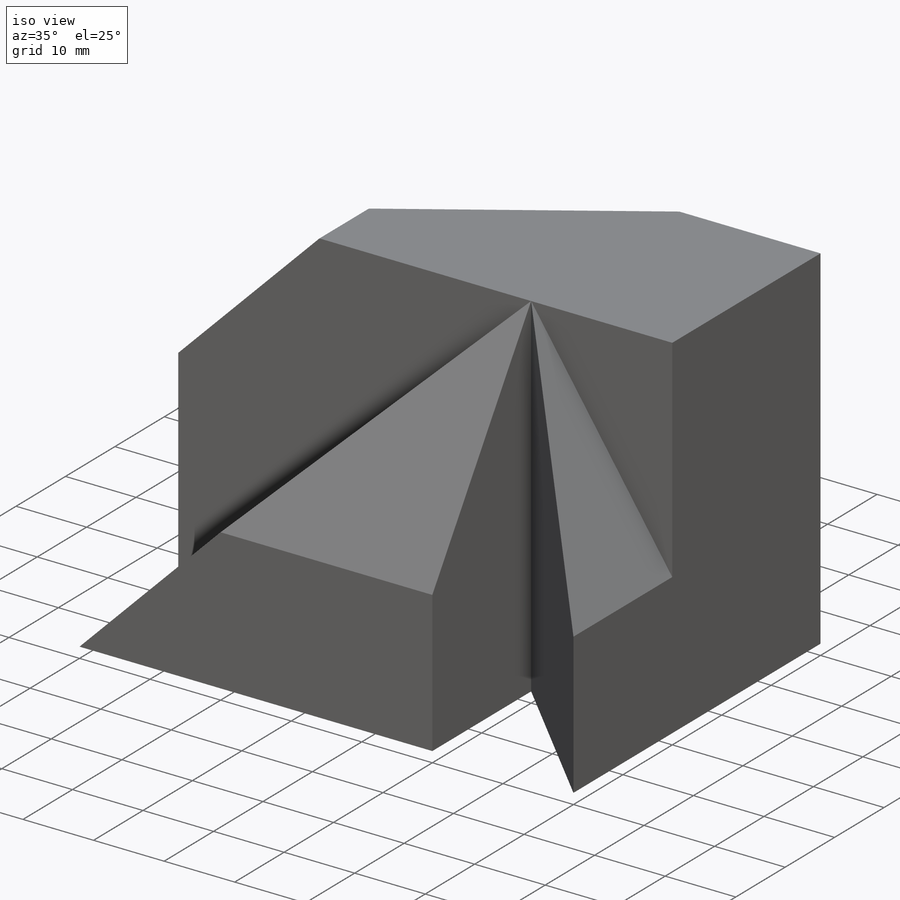
[diagram: iso view]
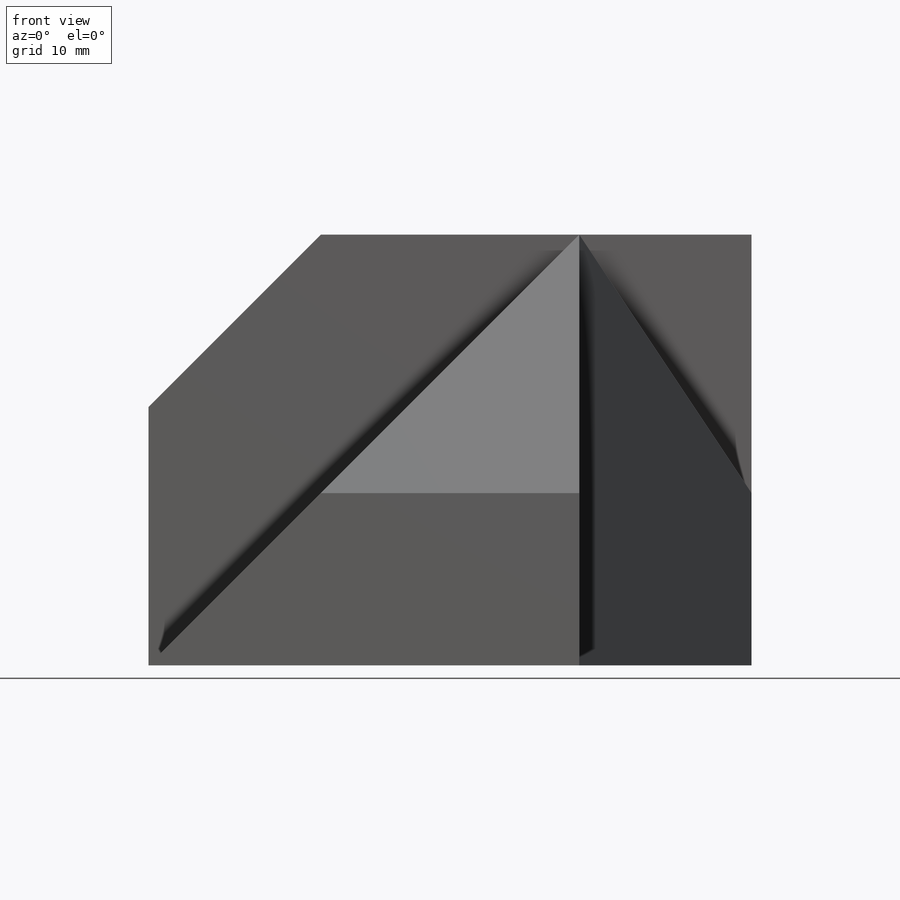
[diagram: front view]
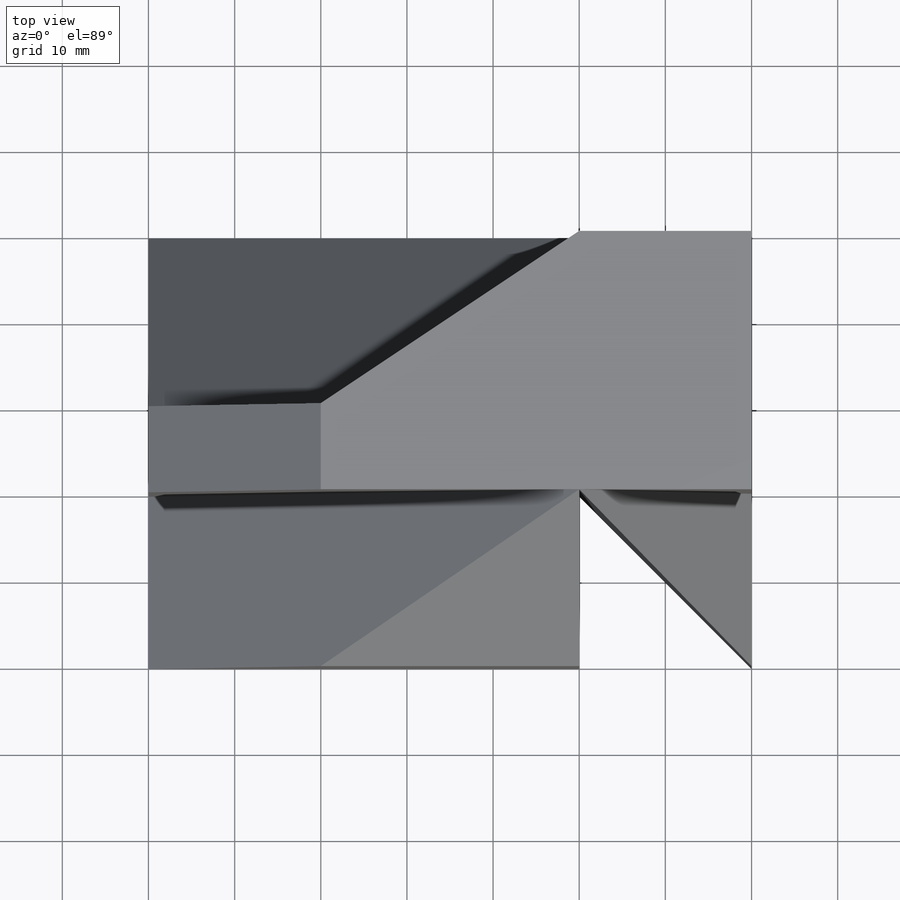
[diagram: top view]
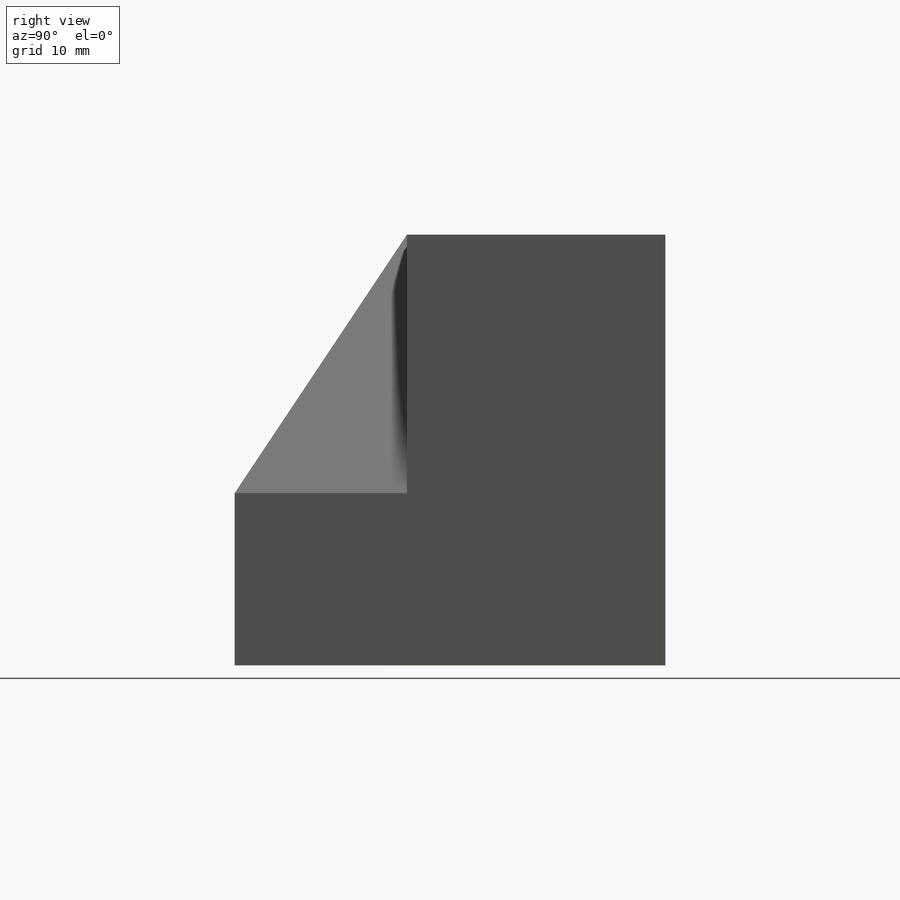
[diagram: right view]
SOLIDWORKS PART (.sldprt)
format: sldprt  version: not decoded by parser v0  size: 847,360 bytes
history: native  units: mm
features: sketch x49, cut_extrude x27, extrude x20, plane x11, material x1 (+13 scaffold rows collapsed)
feature tree (121):
  scaffold x13  (default folders/planes/origin — collapsed)
  material  "Material <not specified>"
  sketch  "Sketch1"  dims[D1=70.0mm D2=50.0mm D3=50.0mm D4=30.0mm]
  extrude  "Boss-Extrude1"  Depth=50mm
  sketch  "Sketch2"  dims[D1=50.0mm D2=30.0mm]
  cut_extrude  "Cut-Extrude2"  Depth=10mm
  sketch  "Sketch3"  dims[D1=20.0mm D2=20.0mm D3=50.0mm]
  cut_extrude  "Cut-Extrude3"  Depth=20mm
  sketch  "Sketch4"  dims[D1=50.0mm D2=20.0mm]
  cut_extrude  "Cut-Extrude4"  Depth=10mm
  sketch  "Sketch5"  dims[D1=30.0mm]
  cut_extrude  "Cut-Extrude5"  Depth=10mm
  sketch  "Sketch6"  dims[D1=50.0mm D2=20.0mm D3=20.0mm]
  cut_extrude  "Cut-Extrude6"  Depth=20mm
  sketch  "Sketch7"  dims[c1.D1=~21.742279mm c1.D2=~12.913947mm c2.D1=10.0mm c2.D2=20.0mm]
  cut_extrude  "Cut-Extrude7"  Depth=30mm
  sketch  "Sketch8"  dims[D1=20.0mm D2=20.0mm D3=50.0mm D4=0.0mm]
  extrude  "Boss-Extrude2"  Depth=30mm
  sketch  "Sketch10"  dims[D1=20.0mm]
  cut_extrude  "Cut-Extrude10"  Depth=72mm
  sketch  "Sketch11"  dims[D1=~36.055513mm]
  cut_extrude  "Cut-Extrude13"  Depth=10mm
  sketch  "Sketch12"  dims[D1=~6.009252mm]
  extrude  "Boss-Extrude3"  Depth=10mm
  plane  "Plane1"  Offset=50mm
  sketch  "Sketch14"  dims[D1=0.0mm D2=20.0mm D3=20.0mm D4=50.0mm]
  extrude  "Boss-Extrude4"  Depth=29mm
  sketch  "Sketch15"  dims[D1=50.0mm D2=30.0mm]
  extrude  "Boss-Extrude5"  Depth=29mm
  sketch  "Sketch16"  dims[D1=10.0mm]
  cut_extrude  "Cut-Extrude15"  Depth=29mm
  sketch  "Sketch17"  dims[D1=~36.055513mm]
  cut_extrude  "Cut-Extrude17"  Depth=10mm
  sketch  "Sketch18"  dims[D1=30.0mm]
  extrude  "Boss-Extrude6"  Depth=35mm
  sketch  "Sketch20"  dims[D1=10.0mm]
  cut_extrude  "Cut-Extrude21"  Depth=10mm
  sketch  "Sketch26"  dims[D1=30.0mm]
  cut_extrude  "Cut-Extrude23"  Depth=10mm
  sketch  "Sketch28"  dims[D1=~25.384615mm]
  cut_extrude  "Cut-Extrude24"  Depth=10mm
  plane  "Plane4"
  sketch  "Sketch30"  dims[D1=~40.55094mm]
  cut_extrude  "Cut-Extrude25"  Depth=10mm
  plane  "Plane5"  Offset=40mm
  plane  "Plane6"  Offset=35mm
  sketch  "Sketch32"  dims[D1=30.0mm D2=30.0mm D3=0.0mm]
  extrude  "Boss-Extrude13"  Depth=19mm
  sketch  "Sketch33"  dims[D1=~11.435437mm]
  extrude  "Boss-Extrude14"  Depth=19mm
  sketch  "Sketch34"  dims[D1=~13.23683mm]
  extrude  "Boss-Extrude15"  Depth=19mm
  sketch  "Sketch36"  dims[D1=~1.047033mm]
  cut_extrude  "Cut-Extrude27"  Depth=19mm
  sketch  "Sketch37"  dims[D1=~14.472244mm]
  cut_extrude  "Cut-Extrude28"  Depth=10mm
  sketch  "Sketch39"  dims[D1=15.0mm]
  extrude  "Boss-Extrude16"  Depth=35mm
  sketch  "Sketch40"  dims[D1=20.0mm]
  plane  "Plane7"  Offset=20mm
  sketch  "Sketch41"  dims[D1=20.0mm D2=20.0mm D3=0.0mm D4=50.0mm D5=10.0mm]
  extrude  "Boss-Extrude17"  Depth=29mm
  sketch  "Sketch42"  dims[D1=20.0mm D2=50.0mm D3=30.0mm]
  cut_extrude  "Cut-Extrude29"  Depth=108mm
  sketch  "Sketch43"  dims[D1=~36.055513mm]
  extrude  "Boss-Extrude18"  Depth=30mm
  sketch  "Sketch44"  dims[D1=5.0mm]
  cut_extrude  "Cut-Extrude30"  Depth=10mm
  sketch  "Sketch45"  dims[D1=30.0mm D2=~31.352048mm]
  cut_extrude  "Cut-Extrude31"  Depth=20mm
  sketch  "Sketch48"  dims[D1=30.0mm]
  cut_extrude  "Cut-Extrude34"  Depth=10mm
  sketch  "Sketch49"  dims[D1=30.0mm]
  cut_extrude  "Cut-Extrude35"  Depth=10mm
  plane  "Plane10"  Offset=20mm
  sketch  "Sketch51"  dims[D1=10.0mm]
  extrude  "Boss-Extrude20"  Depth=10mm
  sketch  "Sketch52"  dims[D1=~14.472244mm]
  extrude  "Boss-Extrude21"  Depth=10mm
  sketch  "Sketch53"  dims[D1=20.0mm]
  extrude  "Boss-Extrude23"  Depth=50mm
  sketch  "Sketch54"  dims[D1=30.0mm]
  cut_extrude  "Cut-Extrude36"  Depth=50mm
  plane  "Plane11"  Offset=20mm
  sketch  "Sketch55"  dims[c1.D1=~9.041167mm c1.D2=~20.270793mm c2.D1=20.0mm c2.D2=9.999mm]
  cut_extrude  "Cut-Extrude41"  Depth=50mm
  sketch  "Sketch57"  dims[D1=9.999mm D2=20.0mm]
  extrude  "Boss-Extrude24"  Depth=30mm
  sketch  "Sketch58"  dims[D1=20.0mm D2=30.0mm]
  cut_extrude  "Cut-Extrude45"  Depth=10mm
  sketch  "Sketch59"  dims[D1=30.0mm]
  cut_extrude  "Cut-Extrude46"  Depth=40mm
  sketch  "Sketch60"  dims[D1=20.0mm]
  extrude  "Boss-Extrude25"  Depth=0.0001mm
  plane  "Plane12"
  sketch  "Sketch61"  dims[D1=30.0mm]
  extrude  "Boss-Extrude28"  Depth=10mm
  plane  "Plane13"
  sketch  "Sketch62"  dims[c1.D1=~45.277047mm c2.D1=10.0mm c2.D5=10.0mm c2.D6=10.0mm c2.D7=5.0mm]
  plane  "Plane14"
  sketch  "Sketch63"  dims[D1=~46.904094mm]
  extrude  "Boss-Extrude30"  Depth=10mm
  sketch  "Sketch64"  dims[D1=~45.148333mm]
  cut_extrude  "Cut-Extrude48"  Depth=10mm
  sketch  "Sketch67"  dims[D1=~7.623632mm]
  cut_extrude  "Cut-Extrude50"  Depth=10mm
  sketch  "Sketch68"  dims[c1.D1=~25.41389mm c1.D2=~25.723934mm c2.D1=~25.723934mm c2.D2=~25.41389mm c2.D3=~2.293411mm c2.D4=~12.375445mm]
  extrude  "Boss-Extrude39"  Depth=1mm
  plane  "Plane15"
decode coverage: 96 of 96 modeling features carry decoded parameters
note: ~ marks probable driven/reference dimensions
note: suppression state not decoded; provenance and decode notes live in map.json
